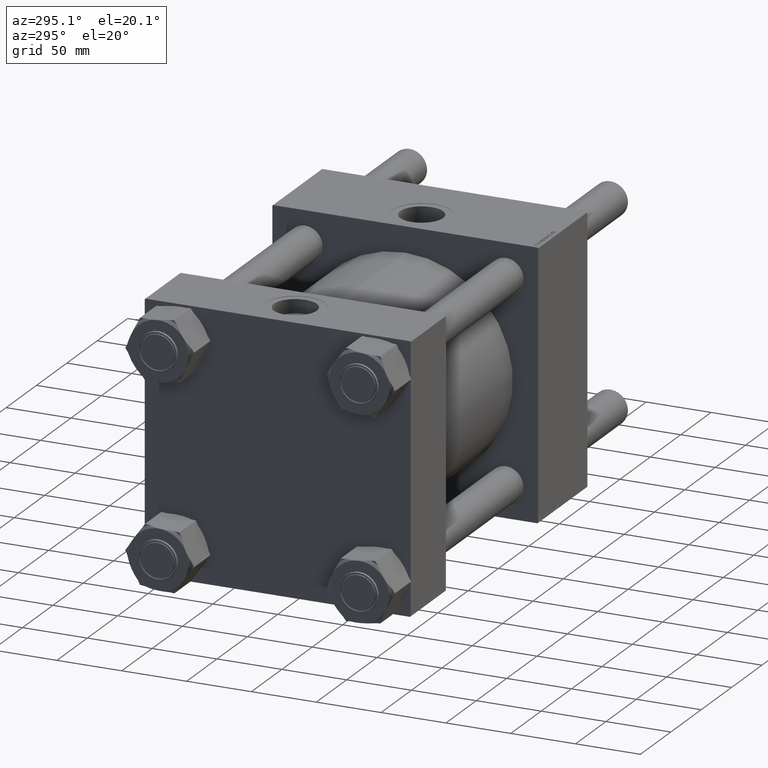
[diagram: clean part render]
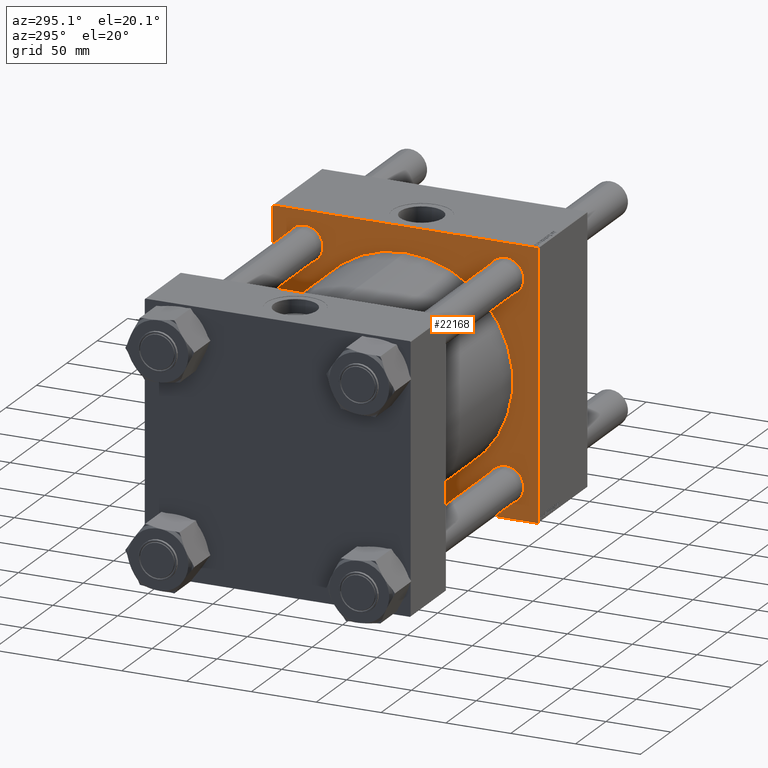
[diagram: same view with one face highlighted and labeled with its STEP entity id]
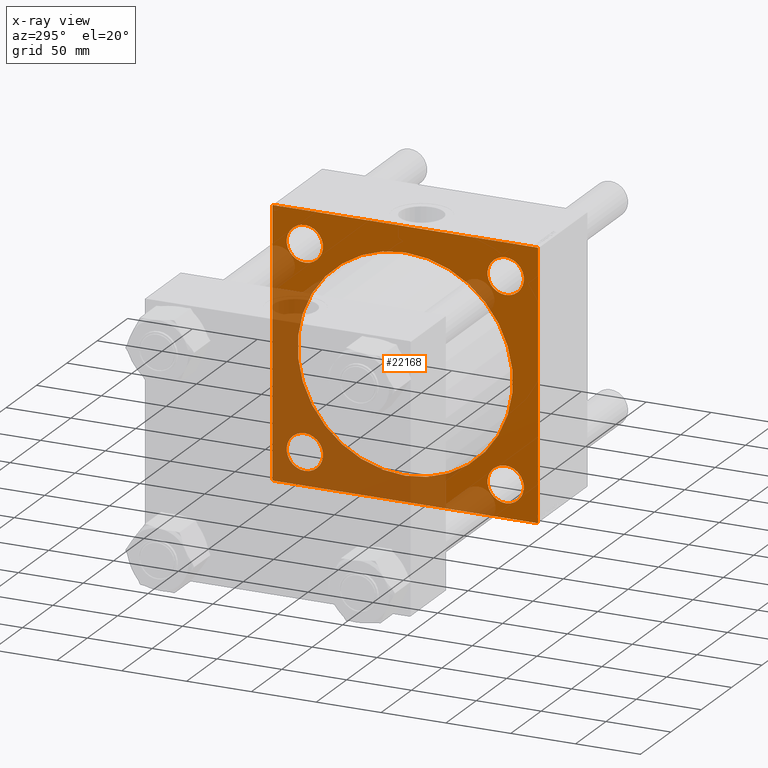
[diagram: x-ray of the same camera — body ghosted, the highlighted face saturated]
A machine part, auxiliary view. The second image highlights one B-rep face of the part: STEP entity #22168.
The next image is the same camera in x-ray: the body ghosted, the highlighted face saturated — about 41% of this face is hidden behind the body in this view.
In plain terms, the highlighted planar face has unit normal (-1, 0, 0).
Its self-contained STEP definition (entity closure, byte-faithful):
#209 = DIRECTION ( 'NONE',  ( 0.000000000000000000, 0.000000000000000000, 1.000000000000000000 ) ) ;
#318 = VERTEX_POINT ( 'NONE', #6165 ) ;
#349 = VERTEX_POINT ( 'NONE', #56765 ) ;
#595 = EDGE_LOOP ( 'NONE', ( #31170, #12539, #34311, #57972, #48091, #26962, #57766, #24594 ) ) ;
#1044 = VERTEX_POINT ( 'NONE', #18972 ) ;
#1262 = AXIS2_PLACEMENT_3D ( 'NONE', #35292, #30793, #22374 ) ;
#2042 = DIRECTION ( 'NONE',  ( 0.000000000000000000, 0.000000000000000000, 1.000000000000000000 ) ) ;
#2869 = EDGE_CURVE ( 'NONE', #3403, #14604, #18178, .T. ) ;
#2966 = AXIS2_PLACEMENT_3D ( 'NONE', #25801, #44158, #26108 ) ;
#3194 = CIRCLE ( 'NONE', #1262, 83.00000000000000000 ) ;
#3403 = VERTEX_POINT ( 'NONE', #47106 ) ;
#4681 = DIRECTION ( 'NONE',  ( 0.000000000000000000, 0.000000000000000000, 1.000000000000000000 ) ) ;
#5331 = VECTOR ( 'NONE', #57448, 1000.000000000000114 ) ;
#5656 = VERTEX_POINT ( 'NONE', #15078 ) ;
#6165 = CARTESIAN_POINT ( 'NONE',  ( 210.0000000000000000, 77.44999999999998863, 91.45000000000008811 ) ) ;
#6354 = CARTESIAN_POINT ( 'NONE',  ( 210.0000000000000000, -102.4999999999999716, 102.4999999999999858 ) ) ;
#6560 = FACE_BOUND ( 'NONE', #8497, .T. ) ;
#6620 = VERTEX_POINT ( 'NONE', #57158 ) ;
#6818 = ORIENTED_EDGE ( 'NONE', *, *, #58994, .T. ) ;
#6974 = VECTOR ( 'NONE', #27267, 1000.000000000000114 ) ;
#7166 = CARTESIAN_POINT ( 'NONE',  ( 210.0000000000000000, 102.5000000000000142, 102.5000000000000142 ) ) ;
#7440 = FACE_OUTER_BOUND ( 'NONE', #595, .T. ) ;
#7660 = LINE ( 'NONE', #29947, #52893 ) ;
#7851 = EDGE_CURVE ( 'NONE', #14604, #3403, #23190, .T. ) ;
#7933 = VECTOR ( 'NONE', #37431, 1000.000000000000000 ) ;
#8012 = DIRECTION ( 'NONE',  ( 0.000000000000000000, 0.000000000000000000, 1.000000000000000000 ) ) ;
#8194 = CARTESIAN_POINT ( 'NONE',  ( 210.0000000000000000, -77.44999999999996021, -77.45000000000003126 ) ) ;
#8317 = CARTESIAN_POINT ( 'NONE',  ( 210.0000000000000000, -102.2499999999985789, -102.2500000000014211 ) ) ;
#8497 = EDGE_LOOP ( 'NONE', ( #6818, #20672 ) ) ;
#8877 = CARTESIAN_POINT ( 'NONE',  ( 210.0000000000000000, -77.44999999999996021, 77.45000000000003126 ) ) ;
#9229 = CARTESIAN_POINT ( 'NONE',  ( 210.0000000000000000, -77.44999999999996021, -77.45000000000003126 ) ) ;
#9538 = DIRECTION ( 'NONE',  ( 1.000000000000000000, -0.000000000000000000, -0.000000000000000000 ) ) ;
#9913 = CIRCLE ( 'NONE', #13777, 14.00000000000006750 ) ;
#11261 = VERTEX_POINT ( 'NONE', #44503 ) ;
#11558 = CARTESIAN_POINT ( 'NONE',  ( 210.0000000000000000, 102.2500000000000142, 102.2500000000000142 ) ) ;
#12453 = EDGE_CURVE ( 'NONE', #13723, #50936, #40943, .T. ) ;
#12536 = ORIENTED_EDGE ( 'NONE', *, *, #41232, .T. ) ;
#12539 = ORIENTED_EDGE ( 'NONE', *, *, #51006, .T. ) ;
#12755 = VERTEX_POINT ( 'NONE', #57206 ) ;
#13424 = CARTESIAN_POINT ( 'NONE',  ( 210.0000000000000000, -77.44999999999996021, 77.45000000000003126 ) ) ;
#13723 = VERTEX_POINT ( 'NONE', #33349 ) ;
#13777 = AXIS2_PLACEMENT_3D ( 'NONE', #19197, #37535, #37839 ) ;
#14285 = DIRECTION ( 'NONE',  ( 0.000000000000000000, 0.000000000000000000, 1.000000000000000000 ) ) ;
#14497 = ORIENTED_EDGE ( 'NONE', *, *, #55639, .T. ) ;
#14564 = EDGE_LOOP ( 'NONE', ( #12536, #54543 ) ) ;
#14604 = VERTEX_POINT ( 'NONE', #27359 ) ;
#15078 = CARTESIAN_POINT ( 'NONE',  ( 210.0000000000000000, -77.44999999999996021, -91.45000000000010232 ) ) ;
#15392 = VECTOR ( 'NONE', #43478, 1000.000000000000114 ) ;
#15426 = EDGE_LOOP ( 'NONE', ( #14497, #25772 ) ) ;
#15483 = AXIS2_PLACEMENT_3D ( 'NONE', #32370, #41715, #4681 ) ;
#15605 = CARTESIAN_POINT ( 'NONE',  ( 210.0000000000000000, -102.0000000000000142, 102.4999999999999858 ) ) ;
#16191 = FACE_BOUND ( 'NONE', #14564, .T. ) ;
#16226 = AXIS2_PLACEMENT_3D ( 'NONE', #8194, #44921, #22059 ) ;
#16367 = LINE ( 'NONE', #11558, #15392 ) ;
#17181 = CIRCLE ( 'NONE', #16226, 14.00000000000006750 ) ;
#17345 = EDGE_CURVE ( 'NONE', #58751, #6620, #58066, .T. ) ;
#17354 = CIRCLE ( 'NONE', #15483, 14.00000000000006750 ) ;
#17823 = EDGE_CURVE ( 'NONE', #11261, #1044, #3194, .T. ) ;
#17935 = DIRECTION ( 'NONE',  ( 0.000000000000000000, 0.000000000000000000, -1.000000000000000000 ) ) ;
#17946 = VECTOR ( 'NONE', #33756, 1000.000000000000000 ) ;
#18178 = CIRCLE ( 'NONE', #32628, 14.00000000000006750 ) ;
#18972 = CARTESIAN_POINT ( 'NONE',  ( 210.0000000000000000, -2.602085213965210642E-15, 83.00000000000000000 ) ) ;
#19197 = CARTESIAN_POINT ( 'NONE',  ( 210.0000000000000000, 77.44999999999998863, 77.45000000000001705 ) ) ;
#19821 = CIRCLE ( 'NONE', #34232, 14.00000000000001243 ) ;
#20284 = CARTESIAN_POINT ( 'NONE',  ( 210.0000000000000000, -102.4999999999999716, 102.0000000000000284 ) ) ;
#20509 = ORIENTED_EDGE ( 'NONE', *, *, #2869, .T. ) ;
#20672 = ORIENTED_EDGE ( 'NONE', *, *, #24828, .T. ) ;
#20813 = EDGE_LOOP ( 'NONE', ( #20509, #54460 ) ) ;
#21004 = CARTESIAN_POINT ( 'NONE',  ( 210.0000000000000000, 0.000000000000000000, 0.000000000000000000 ) ) ;
#22059 = DIRECTION ( 'NONE',  ( 0.000000000000000000, 0.000000000000000000, 1.000000000000000000 ) ) ;
#22078 = EDGE_CURVE ( 'NONE', #6620, #13723, #57757, .T. ) ;
#22168 = ADVANCED_FACE ( 'NONE', ( #6560, #16191, #39650, #24957, #53220, #7440 ), #43304, .T. ) ;
#22170 = DIRECTION ( 'NONE',  ( 1.000000000000000000, -0.000000000000000000, -0.000000000000000000 ) ) ;
#22374 = DIRECTION ( 'NONE',  ( 0.000000000000000000, 0.000000000000000000, -1.000000000000000000 ) ) ;
#23190 = CIRCLE ( 'NONE', #2966, 14.00000000000006750 ) ;
#23628 = CARTESIAN_POINT ( 'NONE',  ( 210.0000000000000000, 102.5000000000000142, 102.5000000000000142 ) ) ;
#24594 = ORIENTED_EDGE ( 'NONE', *, *, #22078, .T. ) ;
#24828 = EDGE_CURVE ( 'NONE', #31150, #29355, #19821, .T. ) ;
#24877 = DIRECTION ( 'NONE',  ( -0.000000000000000000, 0.7071067811865573427, 0.7071067811865376918 ) ) ;
#24957 = FACE_BOUND ( 'NONE', #39213, .T. ) ;
#25550 = DIRECTION ( 'NONE',  ( 0.000000000000000000, 0.000000000000000000, -1.000000000000000000 ) ) ;
#25772 = ORIENTED_EDGE ( 'NONE', *, *, #17823, .T. ) ;
#25801 = CARTESIAN_POINT ( 'NONE',  ( 210.0000000000000000, 77.44999999999998863, -77.45000000000001705 ) ) ;
#25832 = EDGE_CURVE ( 'NONE', #33841, #27349, #33446, .T. ) ;
#26108 = DIRECTION ( 'NONE',  ( 0.000000000000000000, 0.000000000000000000, 1.000000000000000000 ) ) ;
#26805 = AXIS2_PLACEMENT_3D ( 'NONE', #9229, #9538, #209 ) ;
#26962 = ORIENTED_EDGE ( 'NONE', *, *, #38245, .T. ) ;
#27115 = CARTESIAN_POINT ( 'NONE',  ( 210.0000000000000000, 102.5000000000000142, -102.5000000000000142 ) ) ;
#27267 = DIRECTION ( 'NONE',  ( 0.000000000000000000, -0.7071067811865573427, 0.7071067811865376918 ) ) ;
#27349 = VERTEX_POINT ( 'NONE', #43483 ) ;
#27359 = CARTESIAN_POINT ( 'NONE',  ( 210.0000000000000000, 77.44999999999998863, -91.45000000000008811 ) ) ;
#27947 = ORIENTED_EDGE ( 'NONE', *, *, #35599, .T. ) ;
#29114 = VECTOR ( 'NONE', #25550, 1000.000000000000000 ) ;
#29355 = VERTEX_POINT ( 'NONE', #50301 ) ;
#29737 = CARTESIAN_POINT ( 'NONE',  ( 210.0000000000000000, 102.2500000000000142, -102.2500000000000142 ) ) ;
#29947 = CARTESIAN_POINT ( 'NONE',  ( 210.0000000000000000, -102.2499999999985789, 102.2500000000014211 ) ) ;
#29955 = VECTOR ( 'NONE', #35840, 1000.000000000000000 ) ;
#30793 = DIRECTION ( 'NONE',  ( 1.000000000000000000, 0.000000000000000000, 0.000000000000000000 ) ) ;
#31150 = VERTEX_POINT ( 'NONE', #55488 ) ;
#31170 = ORIENTED_EDGE ( 'NONE', *, *, #12453, .T. ) ;
#31191 = LINE ( 'NONE', #8317, #6974 ) ;
#32051 = DIRECTION ( 'NONE',  ( 1.000000000000000000, -0.000000000000000000, -0.000000000000000000 ) ) ;
#32118 = CARTESIAN_POINT ( 'NONE',  ( 210.0000000000000000, 102.5000000000000142, 102.0000000000000142 ) ) ;
#32370 = CARTESIAN_POINT ( 'NONE',  ( 210.0000000000000000, 77.44999999999998863, 77.45000000000001705 ) ) ;
#32628 = AXIS2_PLACEMENT_3D ( 'NONE', #48696, #43606, #39354 ) ;
#33063 = CARTESIAN_POINT ( 'NONE',  ( 210.0000000000000000, 77.44999999999998863, 63.44999999999995310 ) ) ;
#33349 = CARTESIAN_POINT ( 'NONE',  ( 210.0000000000000000, 102.0000000000000142, -102.5000000000000142 ) ) ;
#33366 = AXIS2_PLACEMENT_3D ( 'NONE', #54384, #43926, #17935 ) ;
#33446 = LINE ( 'NONE', #6354, #17946 ) ;
#33756 = DIRECTION ( 'NONE',  ( 0.000000000000000000, -1.353930517835556727E-16, -1.000000000000000000 ) ) ;
#33841 = VERTEX_POINT ( 'NONE', #20284 ) ;
#34232 = AXIS2_PLACEMENT_3D ( 'NONE', #13424, #22170, #8012 ) ;
#34242 = DIRECTION ( 'NONE',  ( -1.000000000000000000, 0.000000000000000000, 0.000000000000000000 ) ) ;
#34311 = ORIENTED_EDGE ( 'NONE', *, *, #25832, .F. ) ;
#35292 = CARTESIAN_POINT ( 'NONE',  ( 210.0000000000000000, -2.602085213965210642E-15, 0.000000000000000000 ) ) ;
#35599 = EDGE_CURVE ( 'NONE', #349, #5656, #45069, .T. ) ;
#35840 = DIRECTION ( 'NONE',  ( 0.000000000000000000, -1.000000000000000000, -1.353930517835556727E-16 ) ) ;
#36331 = EDGE_CURVE ( 'NONE', #5656, #349, #17181, .T. ) ;
#37431 = DIRECTION ( 'NONE',  ( 0.000000000000000000, -1.000000000000000000, -1.353930517835556973E-16 ) ) ;
#37535 = DIRECTION ( 'NONE',  ( 1.000000000000000000, -0.000000000000000000, -0.000000000000000000 ) ) ;
#37839 = DIRECTION ( 'NONE',  ( 0.000000000000000000, 0.000000000000000000, 1.000000000000000000 ) ) ;
#38171 = CIRCLE ( 'NONE', #33366, 83.00000000000000000 ) ;
#38245 = EDGE_CURVE ( 'NONE', #12755, #58751, #16367, .T. ) ;
#39213 = EDGE_LOOP ( 'NONE', ( #27947, #49817 ) ) ;
#39354 = DIRECTION ( 'NONE',  ( 0.000000000000000000, 0.000000000000000000, 1.000000000000000000 ) ) ;
#39650 = FACE_BOUND ( 'NONE', #20813, .T. ) ;
#39694 = EDGE_CURVE ( 'NONE', #33841, #41935, #7660, .T. ) ;
#40943 = LINE ( 'NONE', #27115, #29955 ) ;
#41232 = EDGE_CURVE ( 'NONE', #318, #54629, #17354, .T. ) ;
#41715 = DIRECTION ( 'NONE',  ( 1.000000000000000000, -0.000000000000000000, -0.000000000000000000 ) ) ;
#41935 = VERTEX_POINT ( 'NONE', #15605 ) ;
#43304 = PLANE ( 'NONE',  #46666 ) ;
#43478 = DIRECTION ( 'NONE',  ( 0.000000000000000000, 0.7071067811865474617, -0.7071067811865474617 ) ) ;
#43483 = CARTESIAN_POINT ( 'NONE',  ( 210.0000000000000000, -102.5000000000000000, -101.9999999999999858 ) ) ;
#43606 = DIRECTION ( 'NONE',  ( 1.000000000000000000, -0.000000000000000000, -0.000000000000000000 ) ) ;
#43926 = DIRECTION ( 'NONE',  ( 1.000000000000000000, 0.000000000000000000, 0.000000000000000000 ) ) ;
#44158 = DIRECTION ( 'NONE',  ( 1.000000000000000000, -0.000000000000000000, -0.000000000000000000 ) ) ;
#44503 = CARTESIAN_POINT ( 'NONE',  ( 210.0000000000000000, 7.562483218957820855E-15, -83.00000000000000000 ) ) ;
#44921 = DIRECTION ( 'NONE',  ( 1.000000000000000000, -0.000000000000000000, -0.000000000000000000 ) ) ;
#45069 = CIRCLE ( 'NONE', #26805, 14.00000000000006750 ) ;
#45640 = CARTESIAN_POINT ( 'NONE',  ( 210.0000000000000000, -101.9999999999999289, -102.5000000000000284 ) ) ;
#45707 = EDGE_CURVE ( 'NONE', #12755, #41935, #56140, .T. ) ;
#46666 = AXIS2_PLACEMENT_3D ( 'NONE', #21004, #34242, #2042 ) ;
#47106 = CARTESIAN_POINT ( 'NONE',  ( 210.0000000000000000, 77.44999999999998863, -63.44999999999995310 ) ) ;
#48091 = ORIENTED_EDGE ( 'NONE', *, *, #45707, .F. ) ;
#48696 = CARTESIAN_POINT ( 'NONE',  ( 210.0000000000000000, 77.44999999999998863, -77.45000000000001705 ) ) ;
#49817 = ORIENTED_EDGE ( 'NONE', *, *, #36331, .T. ) ;
#50301 = CARTESIAN_POINT ( 'NONE',  ( 210.0000000000000000, -77.44999999999996021, 91.45000000000004547 ) ) ;
#50936 = VERTEX_POINT ( 'NONE', #45640 ) ;
#51006 = EDGE_CURVE ( 'NONE', #50936, #27349, #31191, .T. ) ;
#52430 = EDGE_CURVE ( 'NONE', #54629, #318, #9913, .T. ) ;
#52746 = AXIS2_PLACEMENT_3D ( 'NONE', #8877, #32051, #14285 ) ;
#52893 = VECTOR ( 'NONE', #24877, 1000.000000000000114 ) ;
#53220 = FACE_BOUND ( 'NONE', #15426, .T. ) ;
#54384 = CARTESIAN_POINT ( 'NONE',  ( 210.0000000000000000, -2.602085213965210642E-15, 0.000000000000000000 ) ) ;
#54460 = ORIENTED_EDGE ( 'NONE', *, *, #7851, .T. ) ;
#54543 = ORIENTED_EDGE ( 'NONE', *, *, #52430, .T. ) ;
#54629 = VERTEX_POINT ( 'NONE', #33063 ) ;
#54684 = CIRCLE ( 'NONE', #52746, 14.00000000000001243 ) ;
#55488 = CARTESIAN_POINT ( 'NONE',  ( 210.0000000000000000, -77.44999999999996021, 63.45000000000001705 ) ) ;
#55639 = EDGE_CURVE ( 'NONE', #1044, #11261, #38171, .T. ) ;
#56140 = LINE ( 'NONE', #23628, #7933 ) ;
#56765 = CARTESIAN_POINT ( 'NONE',  ( 210.0000000000000000, -77.44999999999996021, -63.44999999999996732 ) ) ;
#57158 = CARTESIAN_POINT ( 'NONE',  ( 210.0000000000000000, 102.5000000000000142, -102.0000000000000142 ) ) ;
#57206 = CARTESIAN_POINT ( 'NONE',  ( 210.0000000000000000, 102.0000000000000142, 102.5000000000000142 ) ) ;
#57448 = DIRECTION ( 'NONE',  ( -0.000000000000000000, -0.7071067811865474617, -0.7071067811865474617 ) ) ;
#57757 = LINE ( 'NONE', #29737, #5331 ) ;
#57766 = ORIENTED_EDGE ( 'NONE', *, *, #17345, .T. ) ;
#57972 = ORIENTED_EDGE ( 'NONE', *, *, #39694, .T. ) ;
#58066 = LINE ( 'NONE', #7166, #29114 ) ;
#58751 = VERTEX_POINT ( 'NONE', #32118 ) ;
#58994 = EDGE_CURVE ( 'NONE', #29355, #31150, #54684, .T. ) ;